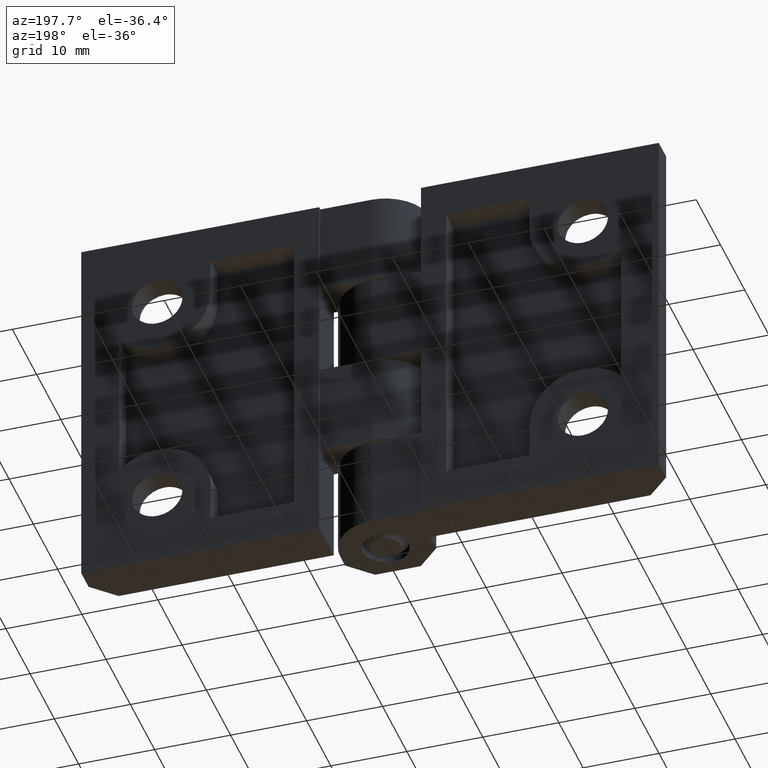
[diagram: clean part render]
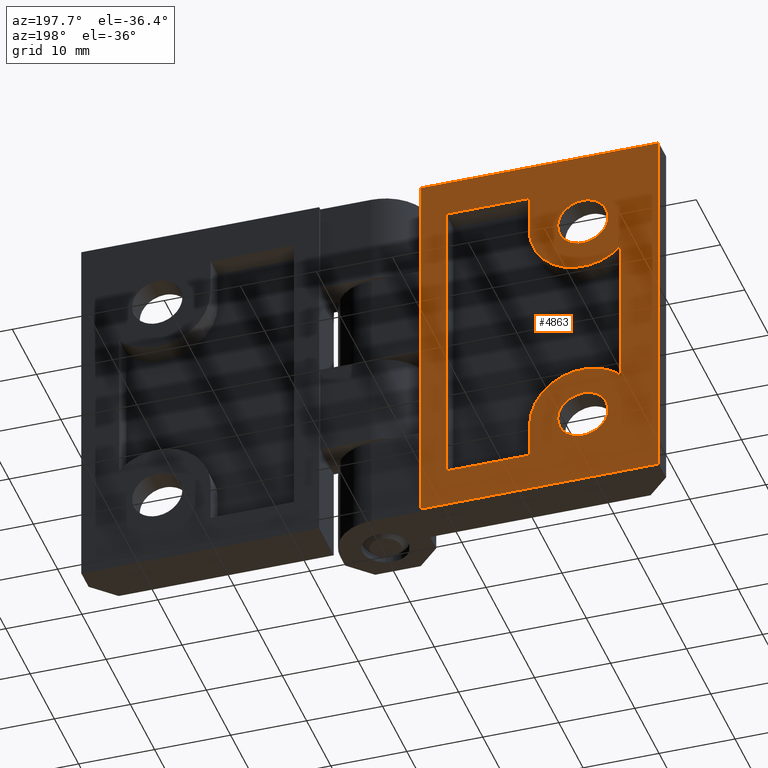
[diagram: same view with one face highlighted and labeled with its STEP entity id]
A machine part, auxiliary view. The second image highlights one B-rep face of the part: STEP entity #4863.
In plain terms, the highlighted face is a freeform B-spline surface patch.
Its self-contained STEP definition (entity closure, byte-faithful):
#2773=CARTESIAN_POINT('',(-24.721551497270170,6.500000308732511,39.623469840015858));
#2774=VERTEX_POINT('',#2773);
#2780=CARTESIAN_POINT('',(-27.999998670071001,6.500000308732511,36.700003073085391));
#2781=VERTEX_POINT('',#2780);
#2782=CARTESIAN_POINT('',(-24.721551497270173,6.500000308732511,39.623469840015858));
#2783=CARTESIAN_POINT('',(-25.057313797538249,6.500000308732510,36.700003073085391));
#2784=CARTESIAN_POINT('',(-27.999998670071001,6.500000308732511,36.700003073085391));
#2792=(BOUNDED_CURVE()B_SPLINE_CURVE(2,(#2782,#2783,#2784),.UNSPECIFIED.,.F.,.U.)B_SPLINE_CURVE_WITH_KNOTS((3,3),(0.269767755886980,0.500000000000000),.UNSPECIFIED.)CURVE()GEOMETRIC_REPRESENTATION_ITEM()RATIONAL_B_SPLINE_CURVE((0.957343736440206,0.730266147788372,1.0))REPRESENTATION_ITEM(''));
#2793=EDGE_CURVE('',#2774,#2781,#2792,.T.);
#2795=CARTESIAN_POINT('',(-31.293842333862230,6.500000308732511,39.798541791024697));
#2796=VERTEX_POINT('',#2795);
#2797=CARTESIAN_POINT('',(-27.999998670071001,6.500000308732511,36.700003073085391));
#2798=CARTESIAN_POINT('',(-31.104327587179281,6.500000308732511,36.700003073085391));
#2799=CARTESIAN_POINT('',(-31.293842333862226,6.500000308732511,39.798541791024711));
#2807=(BOUNDED_CURVE()B_SPLINE_CURVE(2,(#2797,#2798,#2799),.UNSPECIFIED.,.F.,.U.)B_SPLINE_CURVE_WITH_KNOTS((3,3),(0.500000000000000,0.739332962238858),.UNSPECIFIED.)CURVE()GEOMETRIC_REPRESENTATION_ITEM()RATIONAL_B_SPLINE_CURVE((1.0,0.719603993286809,0.976072041666537))REPRESENTATION_ITEM(''));
#2808=EDGE_CURVE('',#2781,#2796,#2807,.T.);
#2903=CARTESIAN_POINT('',(-27.999998670071001,6.500000308732511,43.300000726710699));
#2904=VERTEX_POINT('',#2903);
#2905=CARTESIAN_POINT('',(-31.293842333862223,6.500000308732511,39.798541791024711));
#2906=CARTESIAN_POINT('',(-31.299997496883652,6.500000308732511,39.899177816827056));
#2907=CARTESIAN_POINT('',(-31.299997496883648,6.500000308732511,40.000001899898052));
#2908=CARTESIAN_POINT('',(-31.299997496883652,6.500000308732511,43.300000726710699));
#2909=CARTESIAN_POINT('',(-27.999998670071001,6.500000308732511,43.300000726710699));
#2917=(BOUNDED_CURVE()B_SPLINE_CURVE(2,(#2905,#2906,#2907,#2908,#2909),.UNSPECIFIED.,.F.,.U.)B_SPLINE_CURVE_WITH_KNOTS((3,2,3),(0.739332962238858,0.750000000000000,1.0),.UNSPECIFIED.)CURVE()GEOMETRIC_REPRESENTATION_ITEM()RATIONAL_B_SPLINE_CURVE((0.976072041666536,0.987502787899738,1.0,0.707106781186547,1.0))REPRESENTATION_ITEM(''));
#2918=EDGE_CURVE('',#2796,#2904,#2917,.T.);
#2920=CARTESIAN_POINT('',(-27.999998670071001,6.500000308732511,43.300000726710699));
#2921=CARTESIAN_POINT('',(-24.699999843258350,6.500000308732511,43.300000726710699));
#2922=CARTESIAN_POINT('',(-24.699999843258350,6.500000308732511,40.000001899898052));
#2923=CARTESIAN_POINT('',(-24.699999843258357,6.500000308732511,39.811119091363132));
#2924=CARTESIAN_POINT('',(-24.721551497270173,6.500000308732511,39.623469840015858));
#2932=(BOUNDED_CURVE()B_SPLINE_CURVE(2,(#2920,#2921,#2922,#2923,#2924),.UNSPECIFIED.,.F.,.U.)B_SPLINE_CURVE_WITH_KNOTS((3,2,3),(0.0,0.250000000000000,0.269767755886980),.UNSPECIFIED.)CURVE()GEOMETRIC_REPRESENTATION_ITEM()RATIONAL_B_SPLINE_CURVE((1.0,0.707106781186547,1.0,0.976840633398175,0.957343736440206))REPRESENTATION_ITEM(''));
#2933=EDGE_CURVE('',#2904,#2774,#2932,.T.);
#3101=CARTESIAN_POINT('',(-24.721551497270170,6.500000308732510,9.623469840015853));
#3102=VERTEX_POINT('',#3101);
#3108=CARTESIAN_POINT('',(-27.999998670071001,6.500000308732511,6.700003073085392));
#3109=VERTEX_POINT('',#3108);
#3110=CARTESIAN_POINT('',(-24.721551497270170,6.500000308732510,9.623469840015853));
#3111=CARTESIAN_POINT('',(-25.057313797538260,6.500000308732510,6.700003073085393));
#3112=CARTESIAN_POINT('',(-27.999998670071001,6.500000308732511,6.700003073085392));
#3120=(BOUNDED_CURVE()B_SPLINE_CURVE(2,(#3110,#3111,#3112),.UNSPECIFIED.,.F.,.U.)B_SPLINE_CURVE_WITH_KNOTS((3,3),(0.269767755886980,0.500000000000000),.UNSPECIFIED.)CURVE()GEOMETRIC_REPRESENTATION_ITEM()RATIONAL_B_SPLINE_CURVE((0.957343736440206,0.730266147788373,1.0))REPRESENTATION_ITEM(''));
#3121=EDGE_CURVE('',#3102,#3109,#3120,.T.);
#3123=CARTESIAN_POINT('',(-31.293842333862230,6.500000308732511,9.798541791024704));
#3124=VERTEX_POINT('',#3123);
#3125=CARTESIAN_POINT('',(-27.999998670071001,6.500000308732511,6.700003073085392));
#3126=CARTESIAN_POINT('',(-31.104327587179281,6.500000308732511,6.700003073085393));
#3127=CARTESIAN_POINT('',(-31.293842333862226,6.500000308732511,9.798541791024704));
#3135=(BOUNDED_CURVE()B_SPLINE_CURVE(2,(#3125,#3126,#3127),.UNSPECIFIED.,.F.,.U.)B_SPLINE_CURVE_WITH_KNOTS((3,3),(0.500000000000000,0.739332962238858),.UNSPECIFIED.)CURVE()GEOMETRIC_REPRESENTATION_ITEM()RATIONAL_B_SPLINE_CURVE((1.0,0.719603993286809,0.976072041666537))REPRESENTATION_ITEM(''));
#3136=EDGE_CURVE('',#3109,#3124,#3135,.T.);
#3231=CARTESIAN_POINT('',(-27.999998670071001,6.500000308732511,13.300000726710691));
#3232=VERTEX_POINT('',#3231);
#3233=CARTESIAN_POINT('',(-31.293842333862230,6.500000308732511,9.798541791024704));
#3234=CARTESIAN_POINT('',(-31.299997496883648,6.500000308732511,9.899177816827045));
#3235=CARTESIAN_POINT('',(-31.299997496883648,6.500000308732511,10.000001899898040));
#3236=CARTESIAN_POINT('',(-31.299997496883652,6.500000308732511,13.300000726710687));
#3237=CARTESIAN_POINT('',(-27.999998670071001,6.500000308732511,13.300000726710691));
#3245=(BOUNDED_CURVE()B_SPLINE_CURVE(2,(#3233,#3234,#3235,#3236,#3237),.UNSPECIFIED.,.F.,.U.)B_SPLINE_CURVE_WITH_KNOTS((3,2,3),(0.739332962238858,0.750000000000000,1.0),.UNSPECIFIED.)CURVE()GEOMETRIC_REPRESENTATION_ITEM()RATIONAL_B_SPLINE_CURVE((0.976072041666536,0.987502787899738,1.0,0.707106781186547,1.0))REPRESENTATION_ITEM(''));
#3246=EDGE_CURVE('',#3124,#3232,#3245,.T.);
#3248=CARTESIAN_POINT('',(-27.999998670071001,6.500000308732511,13.300000726710691));
#3249=CARTESIAN_POINT('',(-24.699999843258350,6.500000308732511,13.300000726710687));
#3250=CARTESIAN_POINT('',(-24.699999843258350,6.500000308732511,10.000001899898040));
#3251=CARTESIAN_POINT('',(-24.699999843258350,6.500000308732510,9.811119091363130));
#3252=CARTESIAN_POINT('',(-24.721551497270170,6.500000308732510,9.623469840015853));
#3260=(BOUNDED_CURVE()B_SPLINE_CURVE(2,(#3248,#3249,#3250,#3251,#3252),.UNSPECIFIED.,.F.,.U.)B_SPLINE_CURVE_WITH_KNOTS((3,2,3),(0.0,0.250000000000000,0.269767755886980),.UNSPECIFIED.)CURVE()GEOMETRIC_REPRESENTATION_ITEM()RATIONAL_B_SPLINE_CURVE((1.0,0.707106781186547,1.0,0.976840633398175,0.957343736440206))REPRESENTATION_ITEM(''));
#3261=EDGE_CURVE('',#3232,#3102,#3260,.T.);
#3855=CARTESIAN_POINT('',(-20.999999667517798,6.500000308733211,5.182000246131850));
#3856=VERTEX_POINT('',#3855);
#3857=CARTESIAN_POINT('',(-9.999999145045932,6.500000308733050,5.182000246131800));
#3858=VERTEX_POINT('',#3857);
#3859=CARTESIAN_POINT('',(-20.999999667517798,6.500000308733211,5.182000246131850));
#3860=CARTESIAN_POINT('',(-9.999999145045932,6.500000308733050,5.182000246131800));
#3861=QUASI_UNIFORM_CURVE('',1,(#3859,#3860),.UNSPECIFIED.,.F.,.U.);
#3862=EDGE_CURVE('',#3856,#3858,#3861,.T.);
#3883=CARTESIAN_POINT('',(-20.999999667517852,6.500000308733211,10.000000474974600));
#3884=VERTEX_POINT('',#3883);
#3885=CARTESIAN_POINT('',(-20.999999667517852,6.500000308733211,10.000000474974600));
#3886=CARTESIAN_POINT('',(-20.999999667517798,6.500000308733211,5.182000246131850));
#3887=QUASI_UNIFORM_CURVE('',1,(#3885,#3886),.UNSPECIFIED.,.F.,.U.);
#3888=EDGE_CURVE('',#3884,#3856,#3887,.T.);
#3918=CARTESIAN_POINT('',(-33.000000237487292,6.500000308733211,14.898980193231800));
#3919=VERTEX_POINT('',#3918);
#3920=CARTESIAN_POINT('',(-20.999999667517859,6.500000308733211,10.000000474974600));
#3921=CARTESIAN_POINT('',(-20.999999667517855,6.500000308733211,14.703126813256091));
#3922=CARTESIAN_POINT('',(-25.354248563268388,6.500000308733211,16.480741481200869));
#3923=CARTESIAN_POINT('',(-29.708497459018915,6.500000308733211,18.258356149145641));
#3924=CARTESIAN_POINT('',(-33.000000237487292,6.500000308733211,14.898980193231800));
#3932=(BOUNDED_CURVE()B_SPLINE_CURVE(2,(#3920,#3921,#3922,#3923,#3924),.UNSPECIFIED.,.F.,.U.)B_SPLINE_CURVE_WITH_KNOTS((3,2,3),(0.0,0.500000000000000,1.0),.UNSPECIFIED.)CURVE()GEOMETRIC_REPRESENTATION_ITEM()RATIONAL_B_SPLINE_CURVE((1.0,0.830049538584689,1.0,0.830049538584689,1.0))REPRESENTATION_ITEM(''));
#3933=EDGE_CURVE('',#3884,#3919,#3932,.T.);
#3950=CARTESIAN_POINT('',(-33.000000237486397,6.500000308733211,35.101022181641902));
#3951=VERTEX_POINT('',#3950);
#3952=CARTESIAN_POINT('',(-33.000000237486397,6.500000308733211,35.101022181641902));
#3953=CARTESIAN_POINT('',(-33.000000237487292,6.500000308733211,14.898980193231800));
#3954=QUASI_UNIFORM_CURVE('',1,(#3952,#3953),.UNSPECIFIED.,.F.,.U.);
#3955=EDGE_CURVE('',#3951,#3919,#3954,.T.);
#3985=CARTESIAN_POINT('',(-20.999999667517798,6.500000308733211,40.000001899898102));
#3986=VERTEX_POINT('',#3985);
#3987=CARTESIAN_POINT('',(-33.000000237486418,6.500000308733211,35.101022181641881));
#3988=CARTESIAN_POINT('',(-29.708497459019004,6.500000308733211,31.741646225727052));
#3989=CARTESIAN_POINT('',(-25.354248563268431,6.500000308733211,33.519260893671813));
#3990=CARTESIAN_POINT('',(-20.999999667517866,6.500000308733211,35.296875561616567));
#3991=CARTESIAN_POINT('',(-20.999999667517859,6.500000308733211,40.000001899898102));
#3999=(BOUNDED_CURVE()B_SPLINE_CURVE(2,(#3987,#3988,#3989,#3990,#3991),.UNSPECIFIED.,.F.,.U.)B_SPLINE_CURVE_WITH_KNOTS((3,2,3),(0.0,0.500000000000000,1.0),.UNSPECIFIED.)CURVE()GEOMETRIC_REPRESENTATION_ITEM()RATIONAL_B_SPLINE_CURVE((1.0,0.830049538584687,1.0,0.830049538584687,1.0))REPRESENTATION_ITEM(''));
#4000=EDGE_CURVE('',#3951,#3986,#3999,.T.);
#4017=CARTESIAN_POINT('',(-20.999999667517798,6.500000308733211,45.182002146029802));
#4018=VERTEX_POINT('',#4017);
#4019=CARTESIAN_POINT('',(-20.999999667517798,6.500000308733211,45.182002146029802));
#4020=CARTESIAN_POINT('',(-20.999999667517798,6.500000308733211,40.000001899898102));
#4021=QUASI_UNIFORM_CURVE('',1,(#4019,#4020),.UNSPECIFIED.,.F.,.U.);
#4022=EDGE_CURVE('',#4018,#3986,#4021,.T.);
#4039=CARTESIAN_POINT('',(-9.999999145045932,6.500000308733211,45.182002146029802));
#4040=VERTEX_POINT('',#4039);
#4041=CARTESIAN_POINT('',(-9.999999145045932,6.500000308733211,45.182002146029802));
#4042=CARTESIAN_POINT('',(-20.999999667517798,6.500000308733211,45.182002146029802));
#4043=QUASI_UNIFORM_CURVE('',1,(#4041,#4042),.UNSPECIFIED.,.F.,.U.);
#4044=EDGE_CURVE('',#4040,#4018,#4043,.T.);
#4061=CARTESIAN_POINT('',(-9.999999145045932,6.500000308733050,5.182000246131800));
#4062=CARTESIAN_POINT('',(-9.999999145045932,6.500000308733211,45.182002146029802));
#4063=QUASI_UNIFORM_CURVE('',1,(#4061,#4062),.UNSPECIFIED.,.F.,.U.);
#4064=EDGE_CURVE('',#3858,#4040,#4063,.T.);
#4338=CARTESIAN_POINT('',(-6.699998988304300,6.500000308733170,0.0));
#4339=VERTEX_POINT('',#4338);
#4340=CARTESIAN_POINT('',(-38.000000474974399,6.500000308732010,0.0));
#4341=VERTEX_POINT('',#4340);
#4342=CARTESIAN_POINT('',(-6.699998988304300,6.500000308733170,0.0));
#4343=CARTESIAN_POINT('',(-38.000000474974399,6.500000308732010,0.0));
#4344=QUASI_UNIFORM_CURVE('',1,(#4342,#4343),.UNSPECIFIED.,.F.,.U.);
#4345=EDGE_CURVE('',#4339,#4341,#4344,.T.);
#4448=CARTESIAN_POINT('',(-6.699998988304300,6.500000308733170,50.000002374872601));
#4449=VERTEX_POINT('',#4448);
#4479=CARTESIAN_POINT('',(-6.699998988304300,6.500000308733170,50.000002374872601));
#4480=CARTESIAN_POINT('',(-6.699998988304300,6.500000308733170,0.0));
#4481=QUASI_UNIFORM_CURVE('',1,(#4479,#4480),.UNSPECIFIED.,.F.,.U.);
#4482=EDGE_CURVE('',#4449,#4339,#4481,.T.);
#4522=CARTESIAN_POINT('',(-38.000000474974399,6.500000308732010,50.000002374872601));
#4523=VERTEX_POINT('',#4522);
#4529=CARTESIAN_POINT('',(-38.000000474974399,6.500000308732010,50.000002374872601));
#4530=CARTESIAN_POINT('',(-38.000000474974399,6.500000308732010,0.0));
#4531=QUASI_UNIFORM_CURVE('',1,(#4529,#4530),.UNSPECIFIED.,.F.,.U.);
#4532=EDGE_CURVE('',#4523,#4341,#4531,.T.);
#4669=CARTESIAN_POINT('',(-6.699998988304300,6.500000308733170,50.000002374872601));
#4670=CARTESIAN_POINT('',(-38.000000474974399,6.500000308732010,50.000002374872601));
#4671=QUASI_UNIFORM_CURVE('',1,(#4669,#4670),.UNSPECIFIED.,.F.,.U.);
#4672=EDGE_CURVE('',#4449,#4523,#4671,.T.);
#4830=CARTESIAN_POINT('',(-39.563435194746070,6.500000308733170,-2.497500021715181));
#4831=CARTESIAN_POINT('',(-5.136563149157341,6.500000308733170,-2.497500021715181));
#4832=CARTESIAN_POINT('',(-39.563435194746070,6.500000308733170,52.497503737692362));
#4833=CARTESIAN_POINT('',(-5.136563149157341,6.500000308733170,52.497503737692362));
#4834=B_SPLINE_SURFACE_WITH_KNOTS('',1,1,((#4830,#4832),(#4831,#4833)),.UNSPECIFIED.,.F.,.F.,.U.,(2,2),(2,2),(0.0,34.426872045588730),(0.0,54.995003759407538),.UNSPECIFIED.);
#4835=ORIENTED_EDGE('',*,*,#4345,.T.);
#4836=ORIENTED_EDGE('',*,*,#4532,.F.);
#4837=ORIENTED_EDGE('',*,*,#4672,.F.);
#4838=ORIENTED_EDGE('',*,*,#4482,.T.);
#4839=EDGE_LOOP('',(#4835,#4836,#4837,#4838));
#4840=FACE_OUTER_BOUND('',#4839,.T.);
#4841=ORIENTED_EDGE('',*,*,#4064,.T.);
#4842=ORIENTED_EDGE('',*,*,#4044,.T.);
#4843=ORIENTED_EDGE('',*,*,#4022,.T.);
#4844=ORIENTED_EDGE('',*,*,#4000,.F.);
#4845=ORIENTED_EDGE('',*,*,#3955,.T.);
#4846=ORIENTED_EDGE('',*,*,#3933,.F.);
#4847=ORIENTED_EDGE('',*,*,#3888,.T.);
#4848=ORIENTED_EDGE('',*,*,#3862,.T.);
#4849=EDGE_LOOP('',(#4841,#4842,#4843,#4844,#4845,#4846,#4847,#4848));
#4850=FACE_BOUND('',#4849,.T.);
#4851=ORIENTED_EDGE('',*,*,#3136,.F.);
#4852=ORIENTED_EDGE('',*,*,#3121,.F.);
#4853=ORIENTED_EDGE('',*,*,#3261,.F.);
#4854=ORIENTED_EDGE('',*,*,#3246,.F.);
#4855=EDGE_LOOP('',(#4851,#4852,#4853,#4854));
#4856=FACE_BOUND('',#4855,.T.);
#4857=ORIENTED_EDGE('',*,*,#2808,.F.);
#4858=ORIENTED_EDGE('',*,*,#2793,.F.);
#4859=ORIENTED_EDGE('',*,*,#2933,.F.);
#4860=ORIENTED_EDGE('',*,*,#2918,.F.);
#4861=EDGE_LOOP('',(#4857,#4858,#4859,#4860));
#4862=FACE_BOUND('',#4861,.T.);
#4863=ADVANCED_FACE('',(#4840,#4850,#4856,#4862),#4834,.F.);